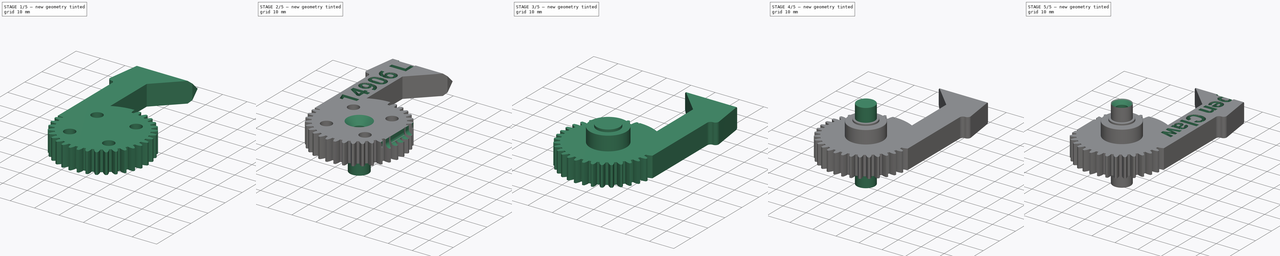
[diagram: build sequence overview — one tinted view per stage of 5, left to right]
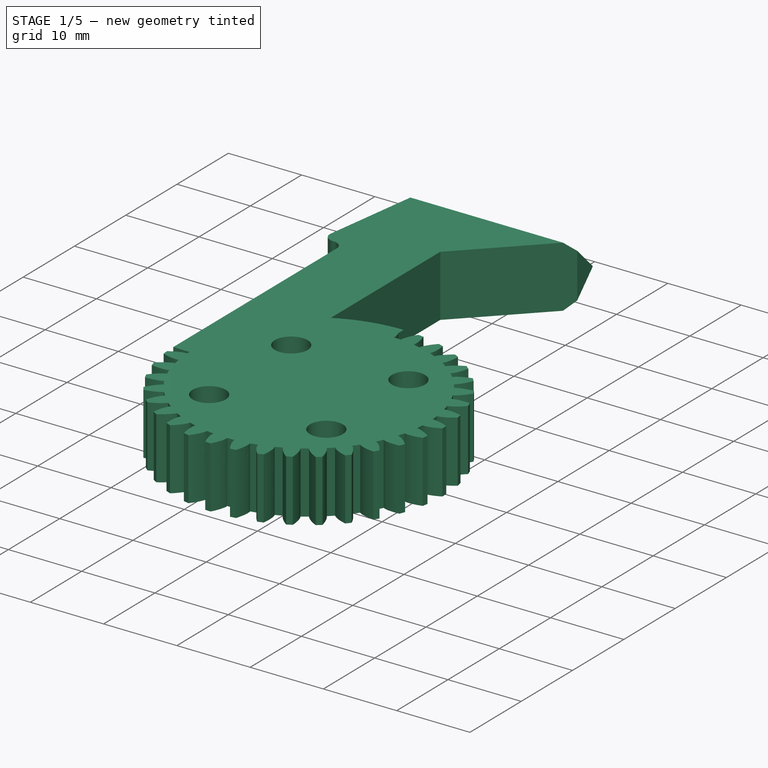
[diagram: stage 1 of 5 — iso view after this stage's code; geometry added in this stage tinted green]
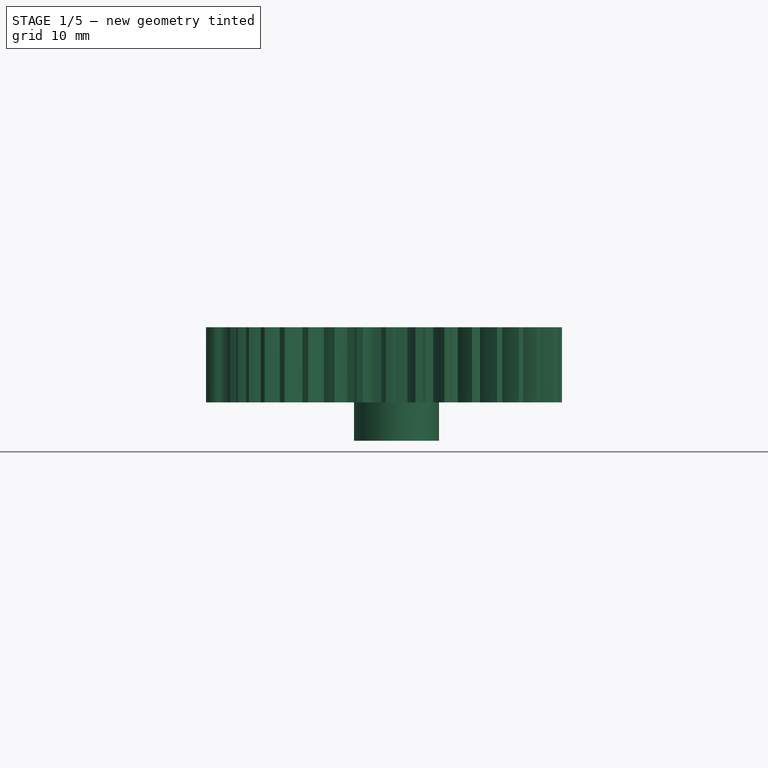
[diagram: stage 1 of 5 — front view after this stage's code; geometry added in this stage tinted green]
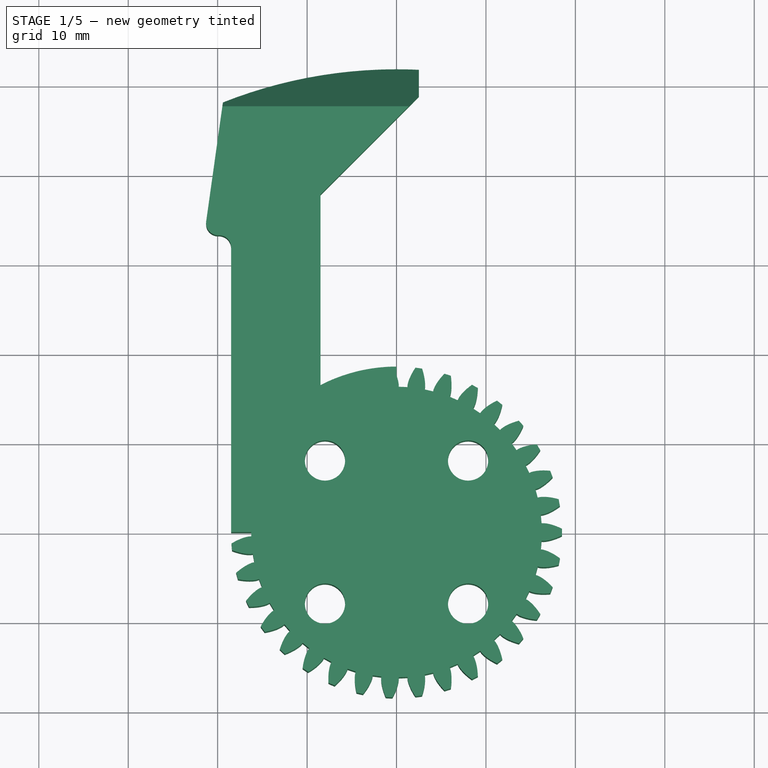
[diagram: stage 1 of 5 — top view after this stage's code; geometry added in this stage tinted green]
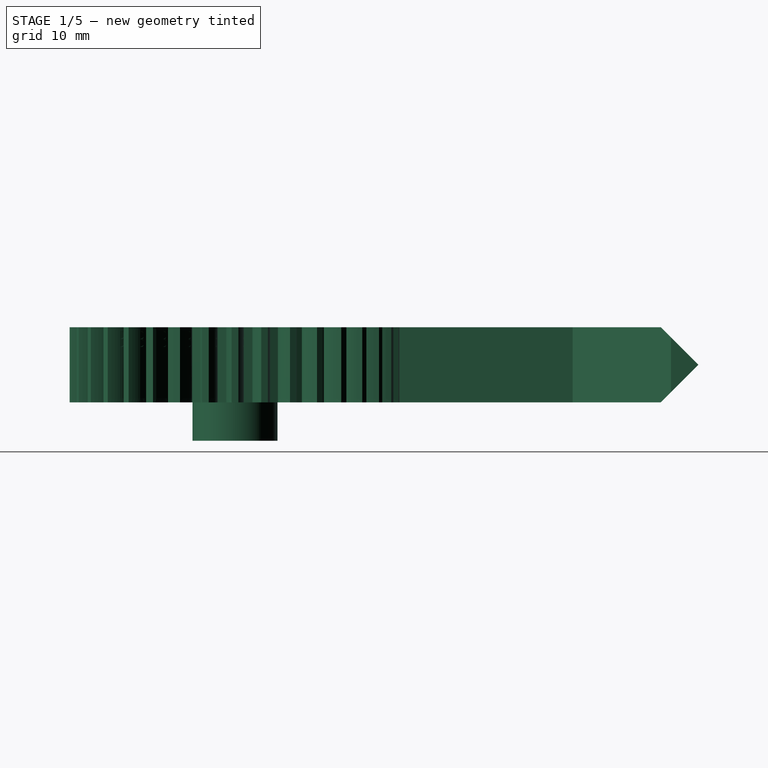
[diagram: stage 1 of 5 — right view after this stage's code; geometry added in this stage tinted green]
FCSTD DOCUMENT  (FreeCAD 1.1R39747 (Git))
Label: claw-pinchers
License: All rights reserved
LicenseURL: https://en.wikipedia.org/wiki/All_rights_reserved
objects: Sketcher::SketchObject×16, PartDesign::Pocket×11, PartDesign::Pad×8, PartDesign::Fillet×4, PartDesign::FeaturePython×2, Part::Part2DObjectPython×2, PartDesign::Hole×2, PartDesign::Body×2, App::Point×2, PartDesign::SubShapeBinder×1
note: 116 computed .brp shape members not serialized (recipe doc carries the construction recipe); baked Part::Feature solids carry a one-line shape summary decoded from their .brp
EXTERNAL_REF file=variables.FCStd obj=Spreadsheet

FEATURE [PartDesign::FeaturePython] InvoluteGear  # WARN: FeaturePython — macro-defined, semantics opaque (R4)
  AttacherType = Attacher::AttachEngine3D
  Suppressed = false
  angular_backlash = 0
  backlash = 0
  beta = 0
  clearance = 0.25
  da = 37
  df = 32.5
  double_helix = false
  dw = 35
  head = 0
  head_fillet = 0
  height = 8.4
  module = 1
  num_teeth = 35
  numpoints = 20
  pressure_angle = 20
  properties_from_tool = false
  reversed_backlash = false
  root_fillet = 0
  shift = 0
  simple = false
  transverse_pitch = 3.14159
  traverse_module = 1
  undercut = false
  version = 1.3.0
  expr: angular_backlash = backlash / dw * 360 ° / pi
  expr: num_teeth = variables#Spreadsheet.claw_pincher_c2c
FEATURE [Sketcher::SketchObject] Sketch
  ArcFitTolerance = 1e-06
  AttachmentSupport = -> [InvoluteGear]
  ExternalTypes = [0]
  FullyConstrained = true
  MakeInternals = false
  MapMode = 5
  Placement = pos=(0,0,8.4) rot=(0,0,1;0rad)
  expr: Constraints[17] = variables#Spreadsheet.claw_pincher_length
  expr: Constraints[1] = variables#Spreadsheet.claw_pincher_c2c + 2
  sketch-geometry (16):
    g0: ArcOfCircle CenterX=0 CenterY=0 CenterZ=0 NormalX=0 NormalY=0 NormalZ=1 AngleXU=0 Radius=18.5 StartAngle=1.5708 EndAngle=2.04818
    g1: LineSegment StartX=0 StartY=0 StartZ=0 EndX=-18.5 EndY=0 EndZ=0
    g2: LineSegment StartX=0 StartY=0 StartZ=0 EndX=0 EndY=18.5 EndZ=0
    g3: LineSegment StartX=-18.5 StartY=0 StartZ=0 EndX=-18.5 EndY=31.8416 EndZ=0
    g4: ArcOfCircle CenterX=0 CenterY=0 CenterZ=0 NormalX=0 NormalY=0 NormalZ=1 AngleXU=0 Radius=51.8191 StartAngle=1.52253 EndAngle=1.95478
    g5: LineSegment StartX=2.5 StartY=51.7588 StartZ=0 EndX=2.5 EndY=48.7588 EndZ=0
    g6: LineSegment StartX=2.5 StartY=48.7588 StartZ=0 EndX=-8.5 EndY=37.7588 EndZ=0
    g7: LineSegment StartX=-8.5 StartY=37.7588 StartZ=0 EndX=-8.5 EndY=16.4317 EndZ=0
    g8: LineSegment [constr] StartX=-13.5 StartY=12.6491 StartZ=0 EndX=-13.5 EndY=47.6491 EndZ=0
    g9: LineSegment [constr] StartX=-18.5 StartY=47.6491 StartZ=0 EndX=-8.5 EndY=47.6491 EndZ=0
    g10: LineSegment StartX=-19.4124 StartY=48.0456 StartZ=0 EndX=-21.2839 EndY=34.7295 EndZ=0
    g11: LineSegment StartX=-19.947 StartY=33.1916 StartZ=0 EndX=-19.85 EndY=33.1916 EndZ=0
    g12: ArcOfCircle CenterX=-19.85 CenterY=31.8416 CenterZ=0 NormalX=0 NormalY=0 NormalZ=1 AngleXU=0 Radius=1.35 StartAngle=-9e-16 EndAngle=1.5708
    g13: GeomPoint [constr] X=-18.5 Y=33.1916 Z=0
    g14: ArcOfCircle CenterX=-19.947 CenterY=34.5416 CenterZ=0 NormalX=0 NormalY=0 NormalZ=1 AngleXU=0 Radius=1.35 StartAngle=3.00197 EndAngle=4.71239
    g15: GeomPoint [constr] X=-21.5 Y=33.1916 Z=0
  constraints (44):
    c: Coincident(g0,g-1)
    c: Diameter(g0) = 37
    c: Coincident(g1,g0)
    c: Horizontal(g1)
    c: Coincident(g2,g0)
    c: Vertical(g2)
    c: Coincident(g0,g2)
    c: Coincident(g3,g1)
    c: Vertical(g3)
    c: Coincident(g4,g0)
    c: Distance(g5) = 3
    c: Coincident(g5,g4)
    c: Vertical(g5)
    c: Coincident(g6,g5)
    c: Coincident(g7,g6)
    c: Vertical(g7)
    c: Vertical(g8)
    c: DistanceY(g8,g8) = 35
    c: Horizontal(g9)
    c: DistanceX(g9,g9) = 10
    c: Symmetric(g9,g9,g8)
    c: Vertical(g6,g9)
    c: DistanceX(g8,g4) = 16
    c: Angle(g9,g6) = 0.785398
    c: Coincident(g0,g7)
    c: PointOnObject(g1,g0)
    c: Horizontal(g11)
    c: PointOnObject(g9,g3)
    c: Coincident(g10,g4)
    c: Distance(g4,g9) = -4.17
    c: DistanceX(g15,g13) = 3
    c: Distance(g10,g15) = 15
    c: PointOnObject(g13,g3)
    c: PointOnObject(g13,g11)
    c: Tangent(g3,g12) = -1.5708
    c: Tangent(g11,g12) = 1.5708
    c: PointOnObject(g15,g10)
    c: PointOnObject(g15,g11)
    c: Tangent(g10,g14) = -1.5708
    c: Tangent(g11,g14) = -1.5708
    c: Angle(g10,g3) = 0.139626
    c: Equal(g12,g14)
    c: Radius(g12) = 1.35
    c: PointOnObject(g8,g0)
FEATURE [PartDesign::Pad] Pad
  BaseFeature = -> InvoluteGear
  Direction = (0,0,1)
  Length = 10
  Length2 = 10
  Profile = -> Sketch
  ReferenceAxis = -> Sketch [N_Axis]
  Refine = true
  Suppressed = false
  Type = 3
  UpToFace = -> InvoluteGear [Face211]
FEATURE [Sketcher::SketchObject] Sketch001
  ArcFitTolerance = 1e-06
  AttachmentSupport = -> [Pad]
  ExternalGeometry = -> [Sketch,Pad]
  ExternalTypes = [0]
  FullyConstrained = true
  MakeInternals = false
  MapMode = 5
  Placement = pos=(-18.5,0,0) rot=(0.57735,-0.57735,-0.57735;2.0944rad)
  sketch-geometry (6):
    g0: LineSegment [constr] StartX=-51.8191 StartY=0 StartZ=0 EndX=-51.8191 EndY=8.4 EndZ=0
    g1: LineSegment StartX=-51.8191 StartY=4.2 StartZ=0 EndX=-47.6191 EndY=8.4 EndZ=0
    g2: LineSegment StartX=-51.8191 StartY=4.2 StartZ=0 EndX=-47.6191 EndY=0 EndZ=0
    g3: LineSegment StartX=-47.6191 StartY=8.4 StartZ=0 EndX=-51.8191 EndY=8.4 EndZ=0
    g4: LineSegment StartX=-51.8191 StartY=8.4 StartZ=0 EndX=-51.8191 EndY=0 EndZ=0
    g5: LineSegment StartX=-51.8191 StartY=0 StartZ=0 EndX=-47.6191 EndY=0 EndZ=0
  constraints (14):
    c: Coincident(g0,g-4)
    c: Coincident(g0,g-3)
    c: Symmetric(g0,g0,g1)
    c: PointOnObject(g1,g-3)
    c: Coincident(g2,g1)
    c: PointOnObject(g2,g-4)
    c: Equal(g2,g1)
    c: Angle(g1,g0) = 0.785398
    c: Coincident(g1,g3)
    c: Coincident(g3,g0)
    c: Coincident(g3,g4)
    c: Coincident(g4,g0)
    c: Coincident(g4,g5)
    c: Coincident(g5,g2)
FEATURE [PartDesign::Pocket] Pocket
  BaseFeature = -> Pad
  Direction = (1,0,0)
  Length = 50
  Length2 = 5
  Midplane = true
  Profile = -> Sketch001
  ReferenceAxis = -> Sketch001 [N_Axis]
  Refine = true
  Suppressed = false
  Type = 0
FEATURE [Sketcher::SketchObject] Sketch002
  ArcFitTolerance = 1e-06
  AttachmentSupport = -> [Pocket]
  ExternalTypes = [0]
  FullyConstrained = true
  MakeInternals = false
  MapMode = 5
  Placement = pos=(0,0,8.4) rot=(0,0,1;0rad)
  sketch-geometry (9):
    g0: LineSegment [constr] StartX=-8 StartY=8 StartZ=0 EndX=-8 EndY=-8 EndZ=0
    g1: LineSegment [constr] StartX=-8 StartY=-8 StartZ=0 EndX=8 EndY=-8 EndZ=0
    g2: LineSegment [constr] StartX=8 StartY=-8 StartZ=0 EndX=8 EndY=8 EndZ=0
    g3: LineSegment [constr] StartX=8 StartY=8 StartZ=0 EndX=-8 EndY=8 EndZ=0
    g4: GeomPoint [constr] X=0 Y=0 Z=0
    g5: Circle CenterX=-8 CenterY=-8 CenterZ=0 NormalX=0 NormalY=0 NormalZ=1 AngleXU=0 Radius=2.25
    g6: Circle CenterX=8 CenterY=-8 CenterZ=0 NormalX=0 NormalY=0 NormalZ=1 AngleXU=0 Radius=2.25
    g7: Circle CenterX=8 CenterY=8 CenterZ=0 NormalX=0 NormalY=0 NormalZ=1 AngleXU=0 Radius=2.25
    g8: Circle CenterX=-8 CenterY=8 CenterZ=0 NormalX=0 NormalY=0 NormalZ=1 AngleXU=0 Radius=2.25
  constraints (20):
    c: Coincident(g0,g1)
    c: Coincident(g1,g2)
    c: Coincident(g2,g3)
    c: Coincident(g3,g0)
    c: Vertical(g0)
    c: Vertical(g2)
    c: Horizontal(g1)
    c: Horizontal(g3)
    c: Symmetric(g2,g0,g4)
    c: Distance(g0,g2) = 16
    c: Coincident(g4,g-1)
    c: Equal(g2,g1)
    c: Diameter(g5) = 4.5
    c: Coincident(g5,g0)
    c: Coincident(g6,g1)
    c: Coincident(g7,g2)
    c: Coincident(g8,g0)
    c: Equal(g8,g7)
    c: Equal(g7,g6)
    c: Equal(g6,g5)
FEATURE [PartDesign::Pocket] Pocket001
  BaseFeature = -> Pocket
  Direction = (0,0,-1)
  Length = 0
  Length2 = 5
  Profile = -> Sketch002
  ReferenceAxis = -> Sketch002 [N_Axis]
  Refine = true
  Suppressed = false
  Type = 3
  UpToFace = -> Pocket [Face4]
FEATURE [Sketcher::SketchObject] Sketch003
  ArcFitTolerance = 1e-06
  AttachmentSupport = -> [Pocket001]
  ExternalTypes = [0]
  FullyConstrained = true
  MakeInternals = false
  MapMode = 5
  Placement = pos=(0,0,0) rot=(1,0,0;3.14159rad)
  sketch-geometry (1):
    g0: Circle CenterX=0 CenterY=0 CenterZ=0 NormalX=0 NormalY=0 NormalZ=1 AngleXU=0 Radius=4.75
  constraints (2):
    c: Diameter(g0) = 9.5
    c: Coincident(g0,g-1)
FEATURE [PartDesign::Pad] Pad001
  BaseFeature = -> Pocket001
  Direction = (0,0,-1)
  Length = 4.3
  Length2 = 10
  Profile = -> Sketch003
  ReferenceAxis = -> Sketch003 [N_Axis]
  Refine = true
  Suppressed = false
  Type = 0
  expr: Length = 4.6 - variables#Spreadsheet.tollerance
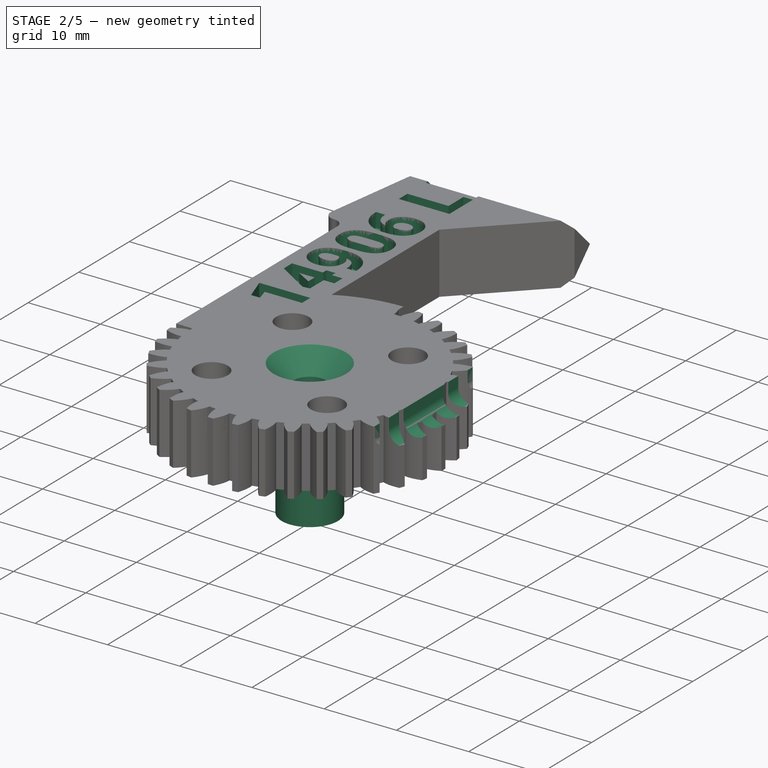
[diagram: stage 2 of 5 — iso view after this stage's code; geometry added in this stage tinted green]
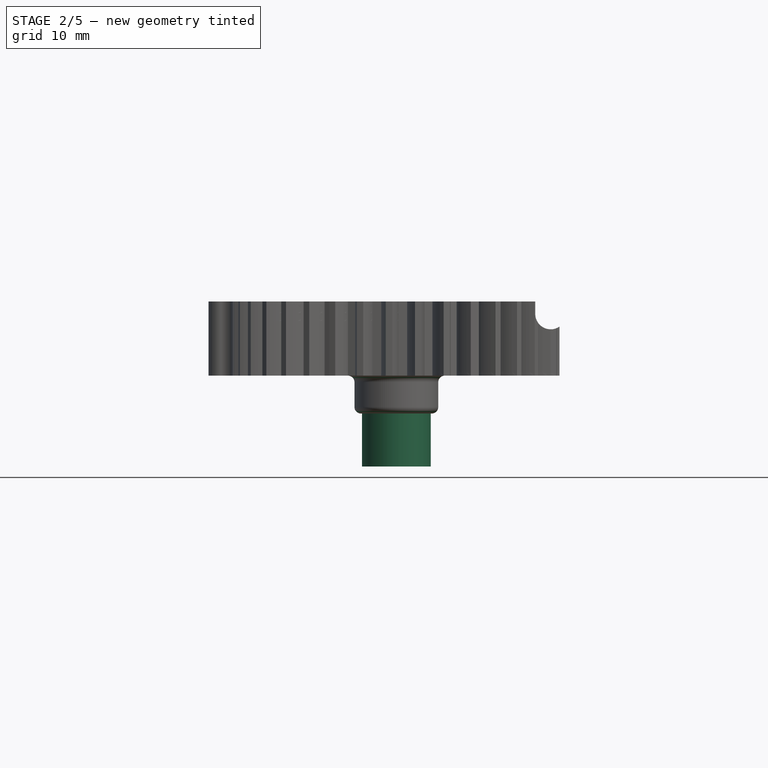
[diagram: stage 2 of 5 — front view after this stage's code; geometry added in this stage tinted green]
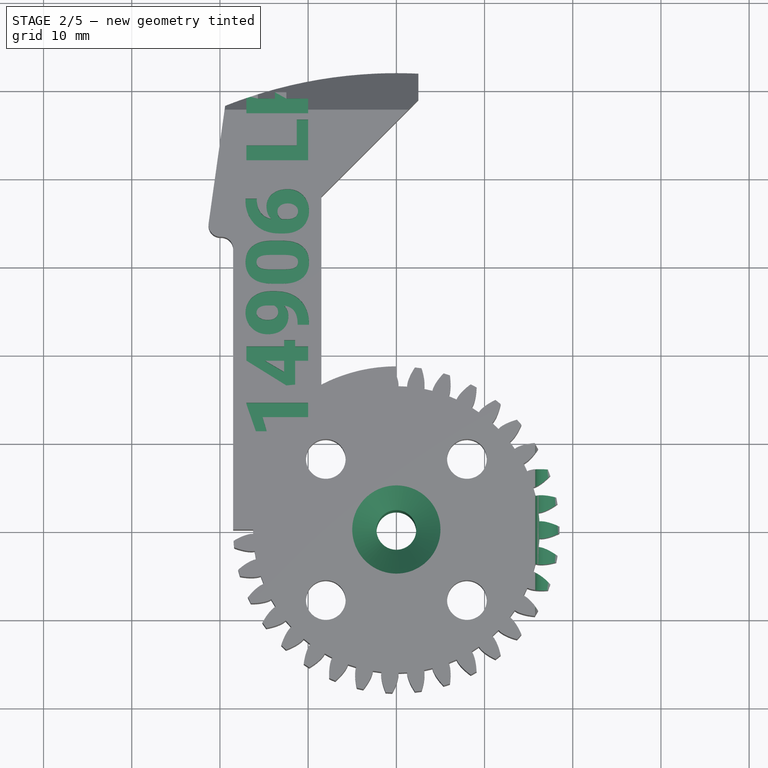
[diagram: stage 2 of 5 — top view after this stage's code; geometry added in this stage tinted green]
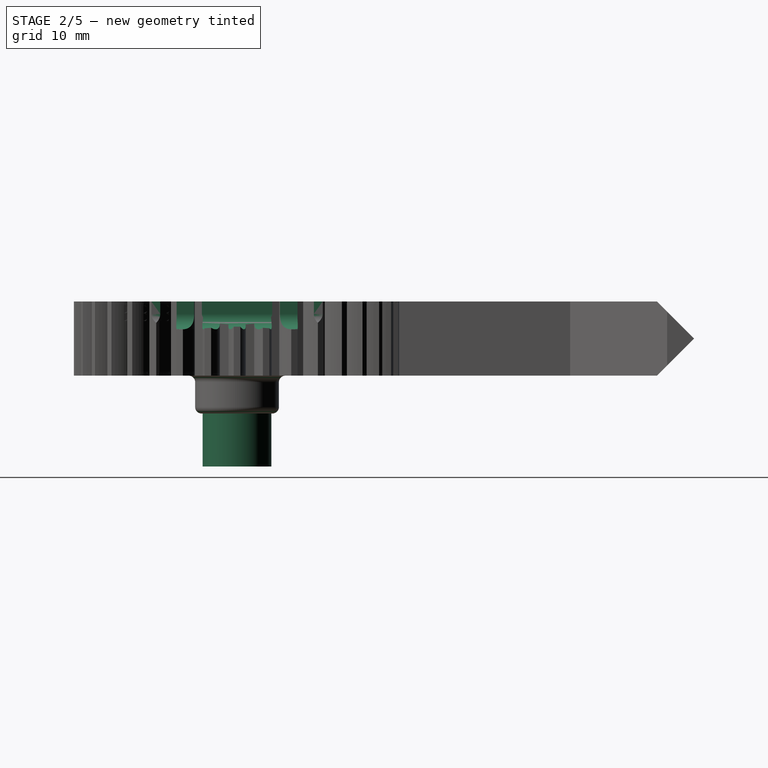
[diagram: stage 2 of 5 — right view after this stage's code; geometry added in this stage tinted green]
FEATURE [PartDesign::Fillet] Fillet
  Base = -> Pad001 [Edge186,Edge542]
  BaseFeature = -> Pad001
  Radius = 0.75
  Refine = true
  SupportTransform = false
  Suppressed = false
  UseAllEdges = false
FEATURE [Sketcher::SketchObject] Sketch004
  ArcFitTolerance = 1e-06
  AttachmentSupport = -> [Fillet]
  ExternalTypes = [0]
  FullyConstrained = true
  MakeInternals = false
  MapMode = 5
  Placement = pos=(0,0,-4.3) rot=(1,0,0;3.14159rad)
  expr: Constraints[0] = variables#Spreadsheet.shaft_diam
  sketch-geometry (1):
    g0: Circle CenterX=0 CenterY=0 CenterZ=0 NormalX=0 NormalY=0 NormalZ=1 AngleXU=0 Radius=3.9
  constraints (2):
    c: Diameter(g0) = 7.8
    c: Coincident(g0,g-1)
FEATURE [PartDesign::Pad] Pad002
  BaseFeature = -> Fillet
  Direction = (0,0,-1)
  Length = 6
  Length2 = 10
  Profile = -> Sketch004
  ReferenceAxis = -> Sketch004 [N_Axis]
  Refine = true
  Suppressed = false
  Type = 0
FEATURE [Sketcher::SketchObject] Sketch005
  ArcFitTolerance = 1e-06
  AttachmentSupport = -> [Pad002]
  ExternalGeometry = -> [Pad002]
  ExternalTypes = [0]
  FullyConstrained = true
  MakeInternals = false
  MapMode = 5
  Placement = pos=(0,0,0) rot=(1,0,0;3.14159rad)
  sketch-geometry (4):
    g0: Circle CenterX=-8 CenterY=-8 CenterZ=0 NormalX=0 NormalY=0 NormalZ=1 AngleXU=0 Radius=4.5
    g1: Circle CenterX=8 CenterY=-8 CenterZ=0 NormalX=0 NormalY=0 NormalZ=1 AngleXU=0 Radius=4.5
    g2: Circle CenterX=8 CenterY=8 CenterZ=0 NormalX=0 NormalY=0 NormalZ=1 AngleXU=0 Radius=4.5
    g3: Circle CenterX=-8 CenterY=8 CenterZ=0 NormalX=0 NormalY=0 NormalZ=1 AngleXU=0 Radius=4.5
  constraints (8):
    c: Diameter(g0) = 9
    c: Coincident(g0,g-6)
    c: Coincident(g1,g-5)
    c: Coincident(g2,g-4)
    c: Coincident(g3,g-3)
    c: Equal(g3,g2)
    c: Equal(g2,g1)
    c: Equal(g1,g0)
FEATURE [PartDesign::Pocket] Pocket002
  BaseFeature = -> Pad002
  Direction = (0,0,1)
  Length = 1.5
  Length2 = 5
  Profile = -> Sketch005
  ReferenceAxis = -> Sketch005 [N_Axis]
  Refine = true
  Suppressed = false
  Type = 0
FEATURE [Part::Part2DObjectPython] ShapeString  # Draft 2D object (typed FeaturePython)
  AttachmentOffset = pos=(-13.5,32,0) rot=(0,0,1;1.5708rad)
  AttachmentSupport = -> [Pocket002]
  FontFile = <userpath>/Downloads/Roboto/Roboto-Black.ttf
  Fuse = false
  Justification = 4
  JustificationReference = 0
  KeepLeftMargin = false
  MakeFace = true
  MapMode = 5
  ObliqueAngle = 0
  Placement = pos=(-13.5,32,8.4) rot=(0,0,1;1.5708rad)
  ScaleToSize = true
  Size = 7
  String = 14906 LR
  Tracking = 0
FEATURE [PartDesign::Pocket] Pocket006
  BaseFeature = -> Pocket002
  Direction = (0,0,-1)
  Length = 2
  Length2 = 5
  Profile = -> ShapeString
  ReferenceAxis = -> ShapeString [N_Axis]
  Refine = true
  Suppressed = false
  Type = 0
FEATURE [Sketcher::SketchObject] Sketch013
  ArcFitTolerance = 1e-06
  AttachmentSupport = -> [Pocket006]
  ExternalTypes = [0]
  FullyConstrained = true
  MakeInternals = false
  MapMode = 5
  Placement = pos=(0,0,8.4) rot=(0,0,1;0rad)
  sketch-geometry (1):
    g0: Circle CenterX=0 CenterY=0 CenterZ=0 NormalX=0 NormalY=0 NormalZ=1 AngleXU=0 Radius=2.25
  constraints (2):
    c: Coincident(g0,g-1)
    c: Diameter(g0) = 4.5
FEATURE [PartDesign::Hole] Hole001
  BaseFeature = -> Pocket006
  CustomThreadClearance = 0
  Depth = 185.015
  DepthType = 1
  Diameter = 4.5
  DrillForDepth = false
  DrillPoint = 1
  DrillPointAngle = 118
  HoleCutCountersinkAngle = 90
  HoleCutCustomValues = false
  HoleCutDepth = 0.5
  HoleCutDiameter = 10
  HoleCutType = 2
  ModelThread = false
  Profile = -> Sketch013
  Refine = true
  Suppressed = false
  Tapered = false
  TaperedAngle = 90
  ThreadClass = 0
  ThreadDepth = 185.015
  ThreadDepthType = 0
  ThreadDirection = 0
  ThreadFit = 0
  ThreadSize = 0
  ThreadType = 0
  Threaded = false
  UseCustomThreadClearance = false
FEATURE [Sketcher::SketchObject] Sketch014
  ArcFitTolerance = 1e-06
  AttachmentSupport = -> [XZ_Plane]
  ExternalGeometry = -> [Hole001]
  ExternalTypes = [0]
  FullyConstrained = true
  MakeInternals = false
  MapMode = 5
  Placement = pos=(0,0,0) rot=(1,0,0;1.5708rad)
  sketch-geometry (5):
    g0: ArcOfCircle CenterX=17.5 CenterY=7 CenterZ=0 NormalX=0 NormalY=0 NormalZ=1 AngleXU=0 Radius=1.75 StartAngle=3.14159 EndAngle=6.28319
    g1: LineSegment [constr] StartX=5 StartY=8.4 StartZ=0 EndX=25 EndY=8.4 EndZ=0
    g2: LineSegment StartX=19.25 StartY=7 StartZ=0 EndX=19.25 EndY=8.4 EndZ=0
    g3: LineSegment StartX=15.75 StartY=7 StartZ=0 EndX=15.75 EndY=8.4 EndZ=0
    g4: LineSegment StartX=15.75 StartY=8.4 StartZ=0 EndX=19.25 EndY=8.4 EndZ=0
  constraints (15):
    c: DistanceX(g0) = 17.5  'screwdriver_hole_x'
    c: DistanceY(g0) = 7  'screwdriver_hole_y'
    c: Diameter(g0) = 3.5  'screwdriver_hole_diam'
    c: Distance(g1) = 20
    c: Coincident(g1,g-3)
    c: Horizontal(g1)
    c: PointOnObject(g2,g1)
    c: Vertical(g2)
    c: PointOnObject(g3,g1)
    c: Vertical(g3)
    c: Horizontal(g3,g0)
    c: Tangent(g0,g2) = -1.5708
    c: Coincident(g0,g3)
    c: Coincident(g4,g3)
    c: Coincident(g4,g2)
FEATURE [PartDesign::Pocket] Pocket009
  BaseFeature = -> Hole001
  Direction = (0,1,-2e-16)
  Length = 25
  Length2 = 5
  Midplane = true
  Profile = -> Sketch014
  ReferenceAxis = -> Sketch014 [N_Axis]
  Refine = true
  Suppressed = false
  Type = 0
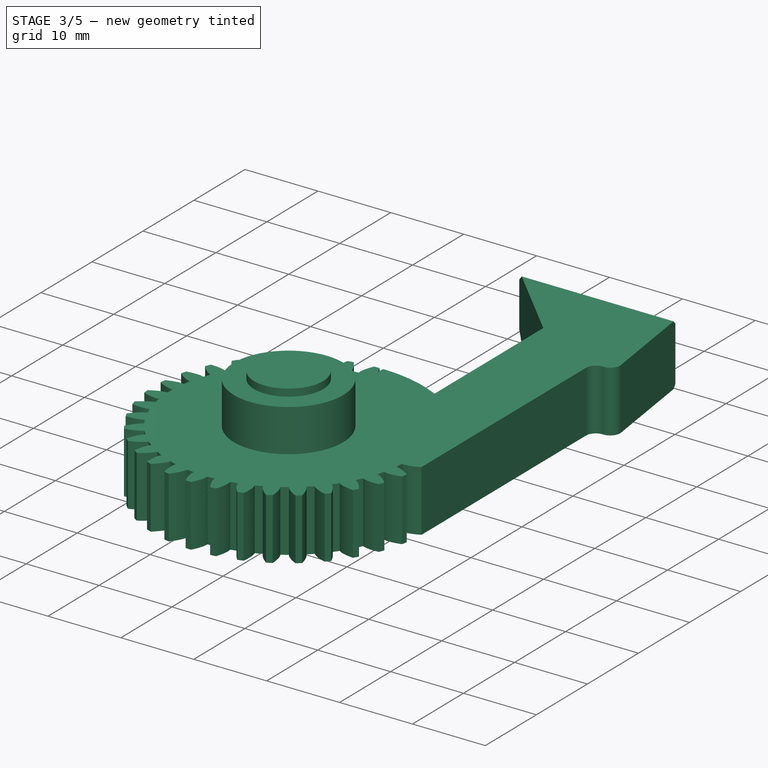
[diagram: stage 3 of 5 — iso view after this stage's code; geometry added in this stage tinted green]
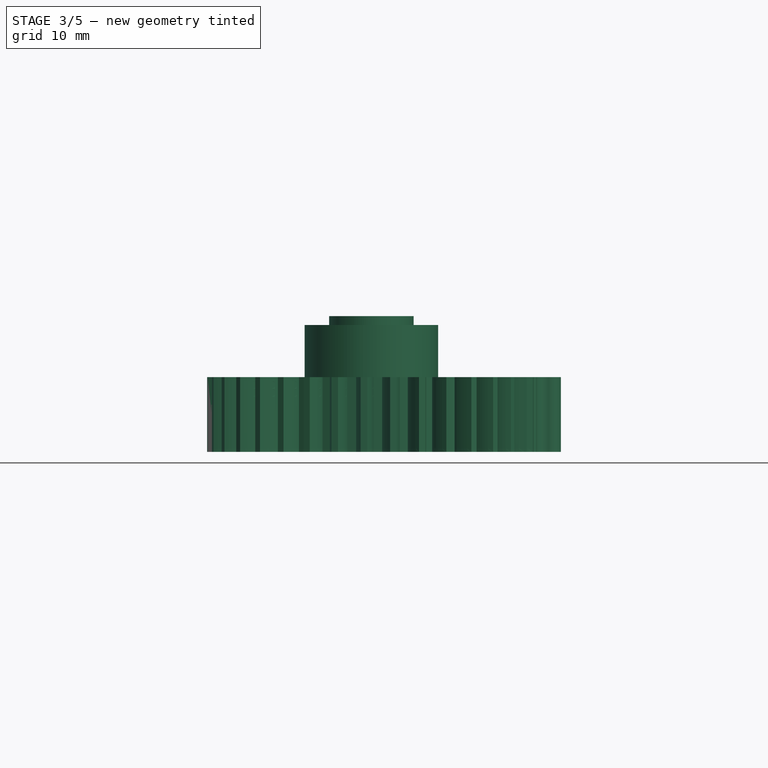
[diagram: stage 3 of 5 — front view after this stage's code; geometry added in this stage tinted green]
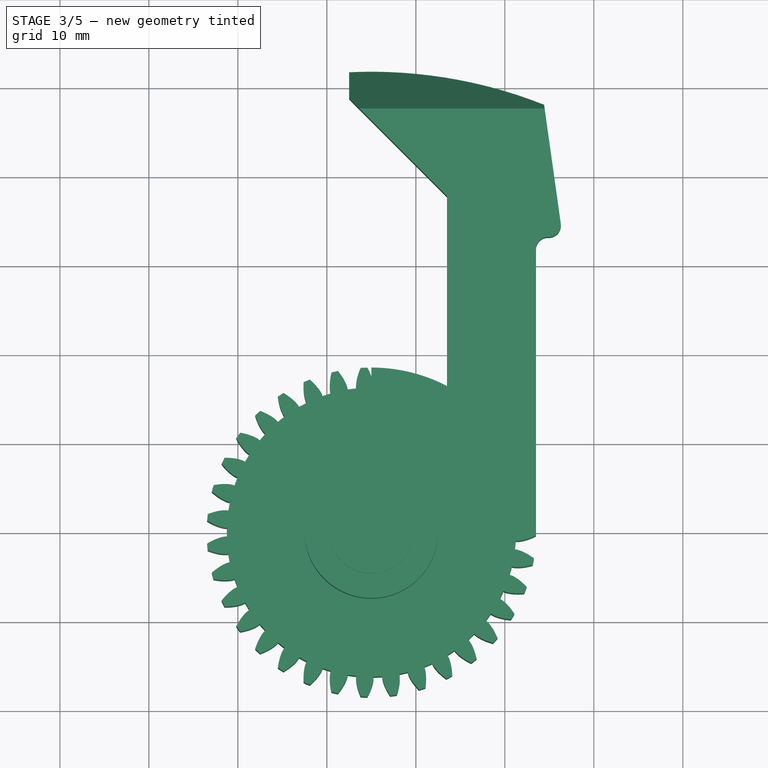
[diagram: stage 3 of 5 — top view after this stage's code; geometry added in this stage tinted green]
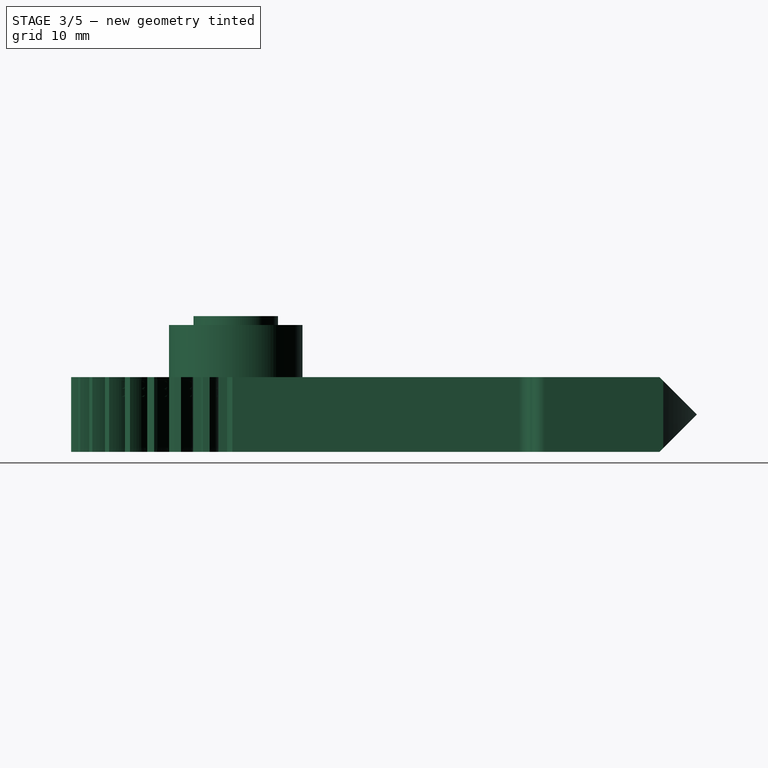
[diagram: stage 3 of 5 — right view after this stage's code; geometry added in this stage tinted green]
FEATURE [PartDesign::FeaturePython] InvoluteGear001  # WARN: FeaturePython — macro-defined, semantics opaque (R4)
  AttacherType = Attacher::AttachEngine3D
  Placement = pos=(35,0,0) rot=(0,0,1;0rad)
  Suppressed = false
  angular_backlash = 0
  backlash = 0
  beta = 0
  clearance = 0.25
  da = 37
  df = 32.5
  double_helix = false
  dw = 35
  head = 0
  head_fillet = 0
  height = 8.4
  module = 1
  num_teeth = 35
  numpoints = 20
  pressure_angle = 20
  properties_from_tool = false
  reversed_backlash = false
  root_fillet = 0
  shift = 0
  simple = false
  transverse_pitch = 3.14159
  traverse_module = 1
  undercut = false
  version = 1.3.0
  expr: .Placement.Base.x = variables#Spreadsheet.claw_pincher_c2c
  expr: angular_backlash = backlash / dw * 360 ° / pi
  expr: height = InvoluteGear.height
  expr: num_teeth = variables#Spreadsheet.claw_pincher_c2c
FEATURE [PartDesign::SubShapeBinder] Binder
  BindCopyOnChange = 0
  BindMode = 0
  ClaimChildren = false
  Context = -> Body001 [Binder.]
  Fuse = false
  MakeFace = true
  OffsetFill = false
  OffsetIntersection = false
  OffsetJoinType = 0
  OffsetOpenResult = false
  PartialLoad = false
  Refine = true
  Relative = true
  Support = -> [Body]
  _Version = 2
FEATURE [Sketcher::SketchObject] Sketch006
  ArcFitTolerance = 1e-06
  AttachmentSupport = -> [InvoluteGear001]
  ExternalGeometry = -> [Binder]
  ExternalTypes = [0]
  FullyConstrained = true
  MakeInternals = false
  MapMode = 5
  Placement = pos=(35,0,8.4) rot=(0,0,1;0rad)
  expr: Constraints[2] = (variables#Spreadsheet.claw_pincher_c2c + 2) / 2
  sketch-geometry (17):
    g0: LineSegment StartX=0 StartY=0 StartZ=0 EndX=18.5 EndY=0 EndZ=0
    g1: LineSegment StartX=0 StartY=18.5 StartZ=0 EndX=0 EndY=0 EndZ=0
    g2: LineSegment StartX=18.5 StartY=0 StartZ=0 EndX=18.5 EndY=31.8416 EndZ=0
    g3: ArcOfCircle CenterX=19.85 CenterY=31.8416 CenterZ=0 NormalX=0 NormalY=0 NormalZ=1 AngleXU=0 Radius=1.35 StartAngle=1.5708 EndAngle=3.14159
    g4: LineSegment StartX=19.85 StartY=33.1916 StartZ=0 EndX=19.947 EndY=33.1916 EndZ=0
    g5: ArcOfCircle CenterX=19.947 CenterY=34.5416 CenterZ=0 NormalX=0 NormalY=0 NormalZ=1 AngleXU=0 Radius=1.35 StartAngle=4.71239 EndAngle=6.42281
    g6: LineSegment StartX=21.2839 StartY=34.7295 StartZ=0 EndX=19.4124 EndY=48.0456 EndZ=0
    g7: LineSegment [constr] StartX=-56.2839 StartY=34.7295 StartZ=0 EndX=-54.4124 EndY=48.0456 EndZ=0
    g8: LineSegment StartX=8.5 StartY=16.4317 StartZ=0 EndX=8.5 EndY=37.7588 EndZ=0
    g9: LineSegment StartX=8.5 StartY=37.7588 StartZ=0 EndX=-2.5 EndY=48.7588 EndZ=0
    g10: LineSegment [constr] StartX=8.5 StartY=27.0952 StartZ=0 EndX=18.5 EndY=27.0952 EndZ=0
    g11: LineSegment [constr] StartX=-53.5 StartY=15.9208 StartZ=0 EndX=-43.5 EndY=15.9208 EndZ=0
    g12: LineSegment [constr] StartX=-32.5 StartY=48.7588 StartZ=0 EndX=-43.5 EndY=37.7588 EndZ=0
    g13: LineSegment StartX=-2.5 StartY=48.7588 StartZ=0 EndX=-2.5 EndY=51.7588 EndZ=0
    g14: ArcOfCircle CenterX=0 CenterY=0 CenterZ=0 NormalX=0 NormalY=0 NormalZ=1 AngleXU=0 Radius=51.8191 StartAngle=1.18681 EndAngle=1.61906
    g15: ArcOfCircle CenterX=0 CenterY=0 CenterZ=0 NormalX=0 NormalY=0 NormalZ=1 AngleXU=0 Radius=18.5 StartAngle=1.09341 EndAngle=1.5708
    g16: LineSegment [constr] StartX=-54.4124 StartY=48.0456 StartZ=0 EndX=-32.5 EndY=51.7588 EndZ=0
  constraints (46):
    c: Coincident(g0,g-1)
    c: PointOnObject(g0,g-1)
    c: DistanceX(g0,g0) = 18.5
    c: PointOnObject(g1,g-2)
    c: Coincident(g2,g0)
    c: Vertical(g2)
    c: Equal(g5,g3)
    c: Equal(g3,g-5)
    c: Equal(g4,g-7)
    c: Horizontal(g4)
    c: Tangent(g3,g2) = 1.5708
    c: Tangent(g4,g3) = 1.5708
    c: Tangent(g5,g4) = -1.5708
    c: Coincident(g6,g5)
    c: Horizontal(g-10,g6)
    c: Coincident(g7,g-8)
    c: Coincident(g7,g-10)
    c: Vertical(g8)
    c: Equal(g8,g-4)
    c: Coincident(g9,g8)
    c: Symmetric(g8,g8,g10)
    c: PointOnObject(g10,g2)
    c: Horizontal(g10)
    c: Symmetric(g-3,g-3,g11)
    c: PointOnObject(g11,g-4)
    c: Horizontal(g11)
    c: Equal(g11,g10)
    c: Coincident(g12,g-14)
    c: Coincident(g12,g-15)
    c: Coincident(g13,g9)
    c: Vertical(g13)
    c: Horizontal(g13,g-13)
    c: Coincident(g14,g13)
    c: Coincident(g14,g6)
    c: Coincident(g14,g0)
    c: Horizontal(g5,g7)
    c: Horizontal(g2,g-5)
    c: Coincident(g15,g8)
    c: Coincident(g15,g1)
    c: Coincident(g1,g15)
    c: Coincident(g0,g1)
    c: Horizontal(g8,g-4)
    c: Coincident(g16,g7)
    c: Coincident(g16,g-13)
    c: Horizontal(g9,g12)
    c: Equal(g9,g12)
FEATURE [PartDesign::Pad] Pad003
  BaseFeature = -> InvoluteGear001
  Direction = (0,0,1)
  Length = 10
  Length2 = 10
  Placement = pos=(35,0,0) rot=(0,0,1;0rad)
  Profile = -> Sketch006
  ReferenceAxis = -> Sketch006 [N_Axis]
  Refine = true
  Suppressed = false
  Type = 3
  UpToFace = -> InvoluteGear001 [Face211]
FEATURE [Sketcher::SketchObject] Sketch007
  ArcFitTolerance = 1e-06
  AttachmentSupport = -> [Pad003]
  ExternalGeometry = -> [Pad003]
  ExternalTypes = [0]
  FullyConstrained = true
  MakeInternals = false
  MapMode = 5
  Placement = pos=(53.5,0,0) rot=(0.57735,0.57735,0.57735;2.0944rad)
  sketch-geometry (7):
    g0: GeomPoint X=51.8191 Y=4.2 Z=0
    g1: LineSegment StartX=51.8191 StartY=4.2 StartZ=0 EndX=47.6191 EndY=8.4 EndZ=0
    g2: LineSegment StartX=51.8191 StartY=4.2 StartZ=0 EndX=47.6191 EndY=0 EndZ=0
    g3: LineSegment StartX=47.6191 StartY=0 StartZ=0 EndX=51.8191 EndY=0 EndZ=0
    g4: LineSegment StartX=51.8191 StartY=8.4 StartZ=0 EndX=47.6191 EndY=8.4 EndZ=0
    g5: LineSegment StartX=51.8191 StartY=0 StartZ=0 EndX=51.8191 EndY=4.2 EndZ=0
    g6: LineSegment StartX=51.8191 StartY=4.2 StartZ=0 EndX=51.8191 EndY=8.4 EndZ=0
  constraints (17):
    c: Coincident(g1,g0)
    c: Horizontal(g1,g-3)
    c: Angle(g1,g-3) = 0.785398
    c: PointOnObject(g2,g-1)
    c: Coincident(g2,g0)
    c: Vertical(g2,g1)
    c: Coincident(g3,g2)
    c: Coincident(g3,g-4)
    c: Coincident(g4,g1)
    c: Horizontal(g4)
    c: Coincident(g5,g3)
    c: Coincident(g5,g0)
    c: Vertical(g5)
    c: Coincident(g6,g0)
    c: Coincident(g6,g4)
    c: Vertical(g6)
    c: Equal(g2,g1)
FEATURE [PartDesign::Pocket] Pocket003
  BaseFeature = -> Pad003
  Direction = (-1,0,0)
  Length = 50
  Length2 = 5
  Midplane = true
  Placement = pos=(35,0,0) rot=(0,0,1;0rad)
  Profile = -> Sketch007
  ReferenceAxis = -> Sketch007 [N_Axis]
  Refine = true
  Suppressed = false
  Type = 0
FEATURE [Sketcher::SketchObject] Sketch008
  ArcFitTolerance = 1e-06
  AttachmentSupport = -> [Pocket003]
  ExternalTypes = [0]
  FullyConstrained = true
  MakeInternals = false
  MapMode = 5
  Placement = pos=(35,0,8.4) rot=(0,0,1;0rad)
  sketch-geometry (1):
    g0: Circle CenterX=0 CenterY=0 CenterZ=0 NormalX=0 NormalY=0 NormalZ=1 AngleXU=0 Radius=7.5
  constraints (2):
    c: Diameter(g0) = 15
    c: Coincident(g0,g-1)
FEATURE [PartDesign::Pad] Pad004
  BaseFeature = -> Pocket003
  Direction = (0,0,1)
  Length = 6.85
  Length2 = 10
  Placement = pos=(35,0,0) rot=(0,0,1;0rad)
  Profile = -> Sketch008
  ReferenceAxis = -> Sketch008 [N_Axis]
  Refine = true
  Suppressed = false
  Type = 0
  expr: Length = 7 - variables#Spreadsheet.tollerance / 2
FEATURE [Sketcher::SketchObject] Sketch009
  ArcFitTolerance = 1e-06
  AttachmentSupport = -> [Pad004]
  ExternalGeometry = -> [Pad004]
  ExternalTypes = [0]
  FullyConstrained = true
  MakeInternals = false
  MapMode = 5
  Placement = pos=(35,0,15.25) rot=(0,0,1;0rad)
  expr: Constraints[4] = variables#Spreadsheet.shaft_diam
  sketch-geometry (3):
    g0: Circle CenterX=0 CenterY=0 CenterZ=0 NormalX=0 NormalY=0 NormalZ=1 AngleXU=0 Radius=4.75
    g1: Circle CenterX=0 CenterY=0 CenterZ=0 NormalX=0 NormalY=0 NormalZ=1 AngleXU=0 Radius=7.5
    g2: Circle CenterX=0 CenterY=0 CenterZ=0 NormalX=0 NormalY=0 NormalZ=1 AngleXU=0 Radius=3.9
  constraints (6):
    c: Diameter(g0) = 9.5
    c: Coincident(g0,g-1)
    c: Coincident(g1,g0)
    c: Equal(g1,g-3)
    c: Diameter(g2) = 7.8
    c: Coincident(g2,g0)
FEATURE [PartDesign::Pocket] Pocket004
  BaseFeature = -> Pad004
  Direction = (0,0,-1)
  Length = 1
  Length2 = 5
  Placement = pos=(35,0,0) rot=(0,0,1;0rad)
  Profile = -> Sketch009 [Edge1,Edge2]
  ReferenceAxis = -> Sketch009 [N_Axis]
  Refine = true
  Suppressed = false
  Type = 0
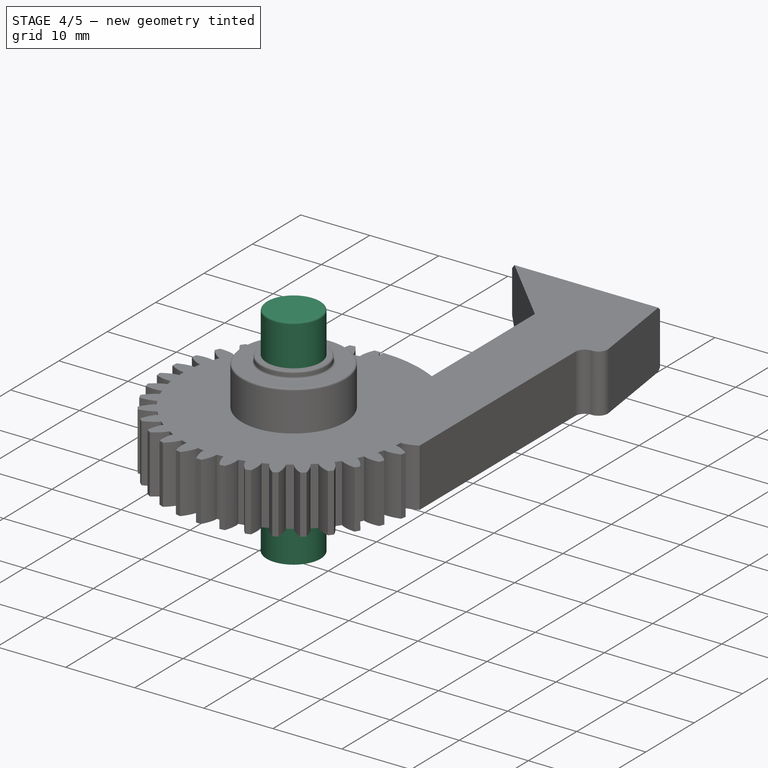
[diagram: stage 4 of 5 — iso view after this stage's code; geometry added in this stage tinted green]
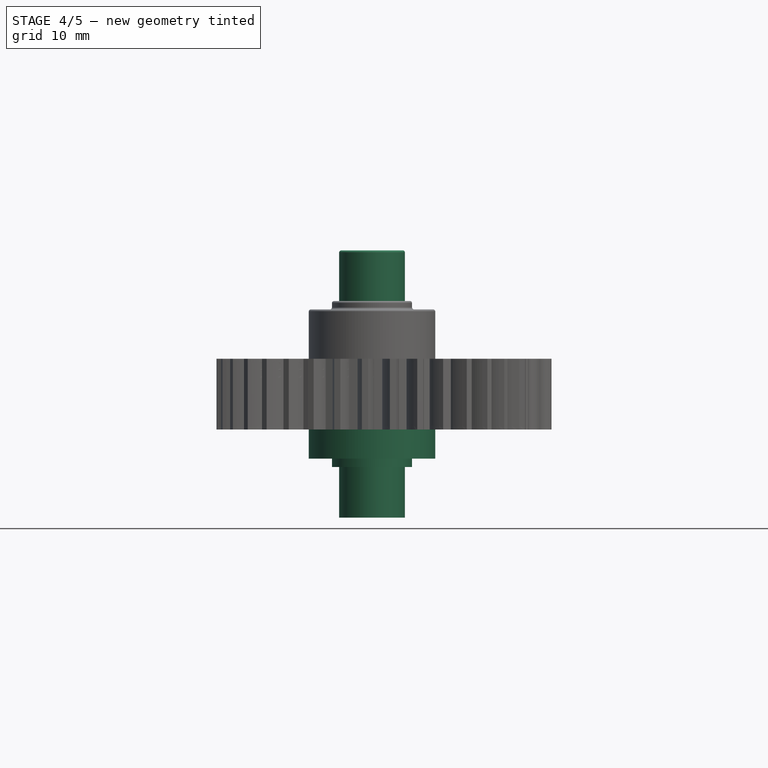
[diagram: stage 4 of 5 — front view after this stage's code; geometry added in this stage tinted green]
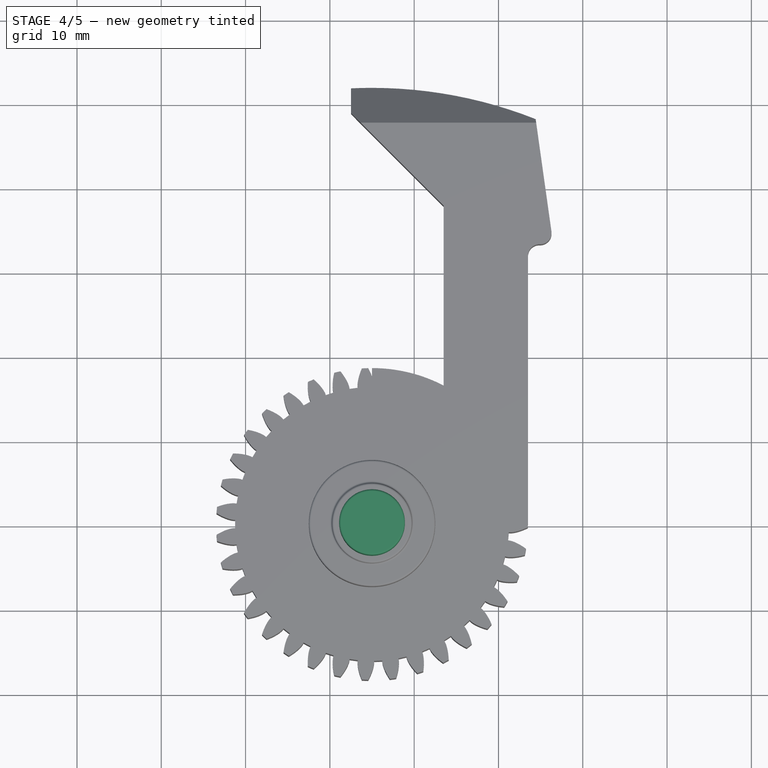
[diagram: stage 4 of 5 — top view after this stage's code; geometry added in this stage tinted green]
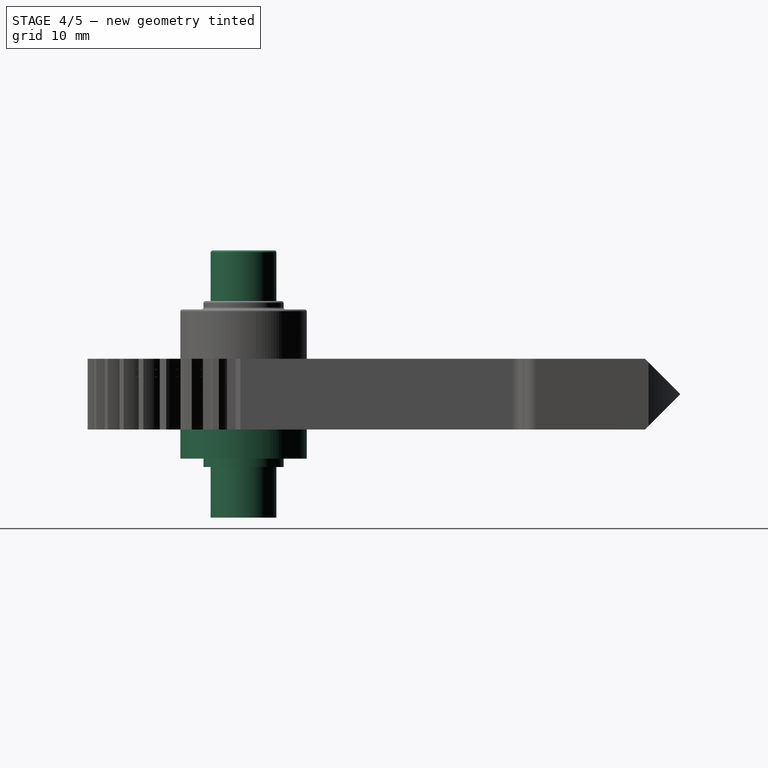
[diagram: stage 4 of 5 — right view after this stage's code; geometry added in this stage tinted green]
FEATURE [PartDesign::Pad] Pad005
  BaseFeature = -> Pocket004
  Direction = (0,0,1)
  Length = 6
  Length2 = 10
  Placement = pos=(35,0,0) rot=(0,0,1;0rad)
  Profile = -> Sketch009 [Edge3]
  ReferenceAxis = -> Sketch009 [N_Axis]
  Refine = true
  Suppressed = false
  Type = 0
FEATURE [PartDesign::Fillet] Fillet001
  Base = -> Pad005 [Edge534,Edge532,Edge530,Edge537]
  BaseFeature = -> Pad005
  Placement = pos=(35,0,0) rot=(0,0,1;0rad)
  Radius = 0.25
  Refine = true
  SupportTransform = false
  Suppressed = false
  UseAllEdges = false
FEATURE [PartDesign::Fillet] Fillet002
  Base = -> Fillet001 [Edge3]
  BaseFeature = -> Fillet001
  Placement = pos=(35,0,0) rot=(0,0,1;0rad)
  Radius = 8
  Refine = true
  SupportTransform = false
  Suppressed = true
  UseAllEdges = false
FEATURE [Sketcher::SketchObject] Sketch010
  ArcFitTolerance = 1e-06
  AttachmentSupport = -> [Fillet002]
  ExternalTypes = [0]
  FullyConstrained = true
  MakeInternals = false
  MapMode = 5
  Placement = pos=(35,0,0) rot=(1,0,0;3.14159rad)
  sketch-geometry (1):
    g0: Circle CenterX=0 CenterY=0 CenterZ=0 NormalX=0 NormalY=0 NormalZ=1 AngleXU=0 Radius=7.5
  constraints (2):
    c: Diameter(g0) = 15
    c: Coincident(g0,g-1)
FEATURE [PartDesign::Pad] Pad006
  BaseFeature = -> Fillet002
  Direction = (0,0,-1)
  Length = 4.45
  Length2 = 10
  Placement = pos=(35,0,0) rot=(0,0,1;0rad)
  Profile = -> Sketch010
  ReferenceAxis = -> Sketch010 [N_Axis]
  Refine = true
  Suppressed = false
  Type = 0
  expr: Length = 4.6 - variables#Spreadsheet.tollerance / 2
FEATURE [Sketcher::SketchObject] Sketch011
  ArcFitTolerance = 1e-06
  AttachmentSupport = -> [Pad006]
  ExternalGeometry = -> [Pad006]
  ExternalTypes = [0]
  FullyConstrained = true
  MakeInternals = false
  MapMode = 5
  Placement = pos=(35,0,-4.45) rot=(1,0,0;3.14159rad)
  expr: Constraints[0] = variables#Spreadsheet.shaft_diam
  sketch-geometry (3):
    g0: Circle CenterX=0 CenterY=0 CenterZ=0 NormalX=0 NormalY=0 NormalZ=1 AngleXU=0 Radius=3.9
    g1: Circle CenterX=0 CenterY=0 CenterZ=0 NormalX=0 NormalY=0 NormalZ=1 AngleXU=0 Radius=4.75
    g2: Circle CenterX=0 CenterY=0 CenterZ=0 NormalX=0 NormalY=0 NormalZ=1 AngleXU=0 Radius=7.5
  constraints (6):
    c: Diameter(g0) = 7.8
    c: Coincident(g0,g-1)
    c: Diameter(g1) = 9.5
    c: Coincident(g1,g0)
    c: Coincident(g2,g0)
    c: Equal(g2,g-3)
FEATURE [PartDesign::Pocket] Pocket005
  BaseFeature = -> Pad006
  Direction = (0,0,1)
  Length = 1
  Length2 = 5
  Placement = pos=(35,0,0) rot=(0,0,1;0rad)
  Profile = -> Sketch011 [Edge3,Edge2]
  ReferenceAxis = -> Sketch011 [N_Axis]
  Refine = true
  Suppressed = false
  Type = 0
FEATURE [PartDesign::Pad] Pad007
  BaseFeature = -> Pocket005
  Direction = (0,0,-1)
  Length = 6
  Length2 = 10
  Placement = pos=(35,0,0) rot=(0,0,1;0rad)
  Profile = -> Sketch011 [Edge1]
  ReferenceAxis = -> Sketch011 [N_Axis]
  Refine = true
  Suppressed = false
  Type = 0
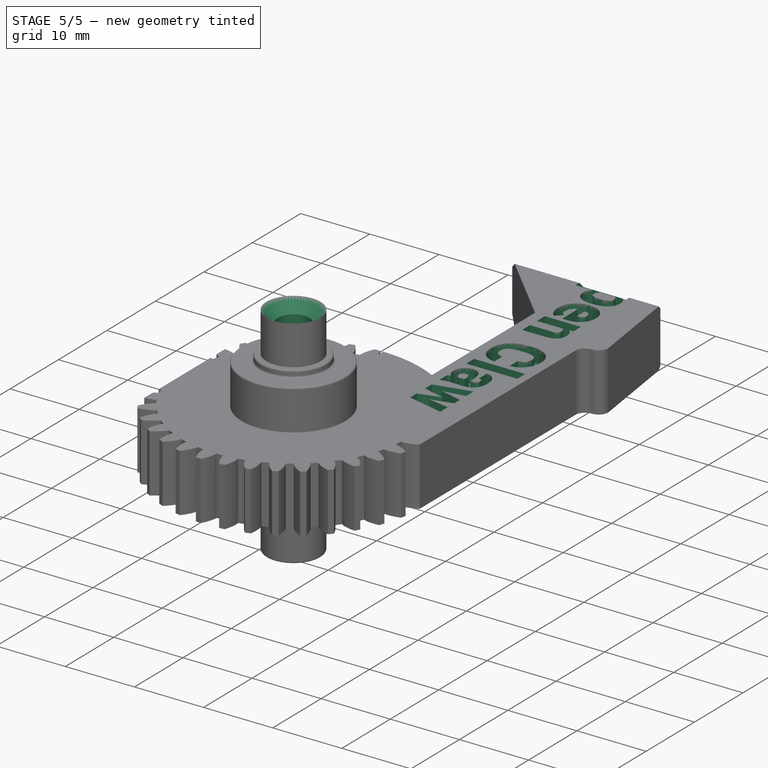
[diagram: stage 5 of 5 — iso view after this stage's code; geometry added in this stage tinted green]
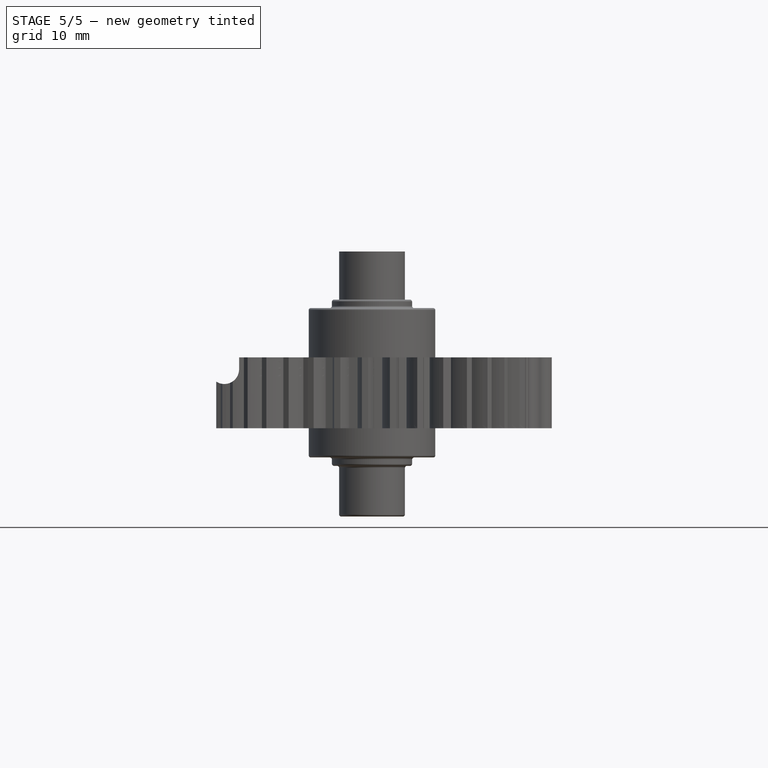
[diagram: stage 5 of 5 — front view after this stage's code; geometry added in this stage tinted green]
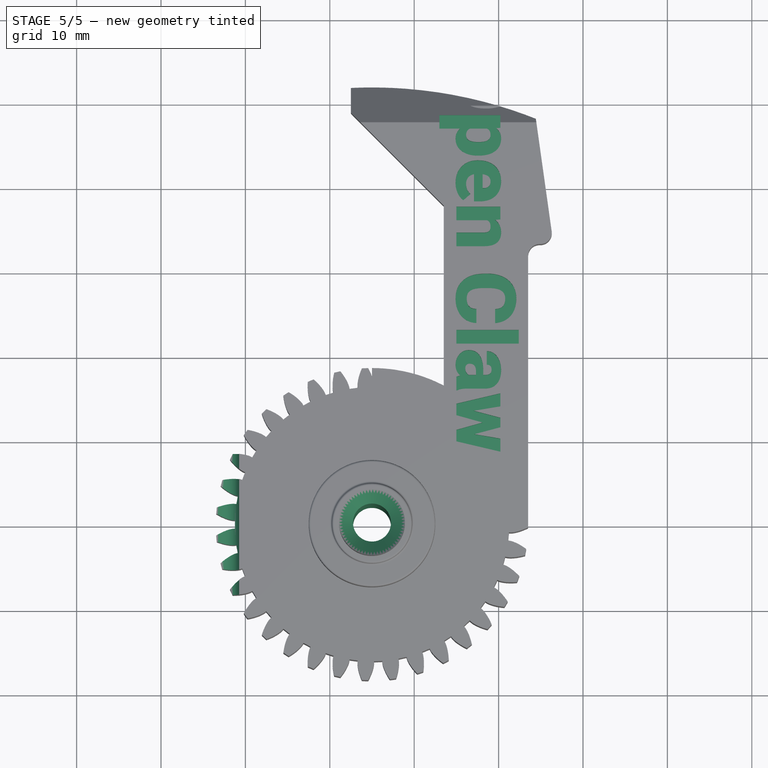
[diagram: stage 5 of 5 — top view after this stage's code; geometry added in this stage tinted green]
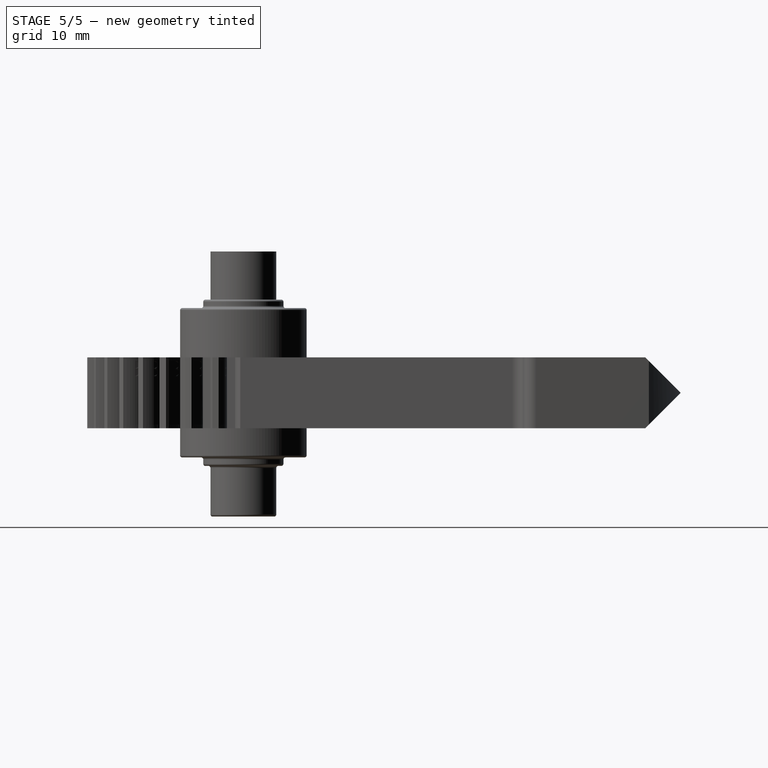
[diagram: stage 5 of 5 — right view after this stage's code; geometry added in this stage tinted green]
FEATURE [PartDesign::Fillet] Fillet003
  Base = -> Pad007 [Edge544,Edge547,Edge550,Edge554,Edge541]
  BaseFeature = -> Pad007
  Placement = pos=(35,0,0) rot=(0,0,1;0rad)
  Radius = 0.25
  Refine = true
  SupportTransform = false
  Suppressed = false
  UseAllEdges = false
FEATURE [Part::Part2DObjectPython] ShapeString001  # Draft 2D object (typed FeaturePython)
  AttachmentOffset = pos=(13.5,32,0) rot=(0,0,-1;1.5708rad)
  AttachmentSupport = -> [Fillet003]
  FontFile = <userpath>/Downloads/Roboto/Roboto-Black.ttf
  Fuse = false
  Justification = 4
  JustificationReference = 0
  KeepLeftMargin = false
  MakeFace = true
  MapMode = 5
  ObliqueAngle = 0
  Placement = pos=(48.5,32,8.4) rot=(0,0,-1;1.5708rad)
  ScaleToSize = true
  Size = 7
  String = Open Claw
  Tracking = 0
  expr: .AttachmentOffset.Base.x = -ShapeString.Placement.Base.x
  expr: .AttachmentOffset.Base.y = ShapeString.Placement.Base.y
  expr: Size = ShapeString.Size
FEATURE [PartDesign::Pocket] Pocket007
  BaseFeature = -> Fillet003
  Direction = (0,0,-1)
  Length = 2
  Length2 = 5
  Placement = pos=(35,0,0) rot=(0,0,1;0rad)
  Profile = -> ShapeString001
  ReferenceAxis = -> ShapeString001 [N_Axis]
  Refine = true
  Suppressed = false
  Type = 0
  expr: Length = Pocket006.Length
FEATURE [Sketcher::SketchObject] Sketch012
  ArcFitTolerance = 1e-06
  AttachmentSupport = -> [Pocket007]
  ExternalTypes = [0]
  FullyConstrained = true
  MakeInternals = false
  MapMode = 5
  Placement = pos=(35,0,21.25) rot=(0,0,1;0rad)
  sketch-geometry (1):
    g0: Circle CenterX=0 CenterY=0 CenterZ=0 NormalX=0 NormalY=0 NormalZ=1 AngleXU=0 Radius=2.25
  constraints (2):
    c: Diameter(g0) = 4.5
    c: Coincident(g0,g-1)
FEATURE [PartDesign::Pocket] Pocket008
  BaseFeature = -> Pocket007
  Direction = (0,0,-1)
  Length = 0
  Length2 = 5
  Placement = pos=(35,0,0) rot=(0,0,1;0rad)
  Profile = -> Sketch012
  ReferenceAxis = -> Sketch012 [N_Axis]
  Refine = true
  Suppressed = false
  Type = 3
  UpToFace = -> Pocket007 [Face324]
FEATURE [PartDesign::Hole] Hole
  BaseFeature = -> Pocket008
  CustomThreadClearance = 0
  Depth = 25
  DepthType = 0
  Diameter = 4.5
  DrillForDepth = false
  DrillPoint = 1
  DrillPointAngle = 118
  HoleCutCountersinkAngle = 90
  HoleCutCustomValues = false
  HoleCutDepth = 0
  HoleCutDiameter = 8.4
  HoleCutType = 2
  ModelThread = false
  Placement = pos=(35,0,0) rot=(0,0,1;0rad)
  Profile = -> Pocket008 [Edge932]
  Refine = true
  Suppressed = false
  Tapered = false
  TaperedAngle = 90
  ThreadClass = 0
  ThreadDepth = 25
  ThreadDepthType = 0
  ThreadDirection = 0
  ThreadFit = 0
  ThreadSize = 0
  ThreadType = 0
  Threaded = false
  UseCustomThreadClearance = false
FEATURE [PartDesign::Body] Body  label="Claw Pincher Powered"
  AllowCompound = false
  Group = -> [InvoluteGear,Sketch,Pad,Sketch001,Pocket,Sketch002,Pocket001,Sketch003,Pad001,Fillet,Sketch004,Pad002,Sketch005,Pocket002,ShapeString,Pocket006,Sketch013,Hole001,Sketch014,Pocket009]
  Origin = -> Origin
  Tip = -> Pocket009
FEATURE [Sketcher::SketchObject] Sketch015
  ArcFitTolerance = 1e-06
  AttachmentSupport = -> [XZ_Plane001]
  ExternalGeometry = -> [Hole]
  ExternalTypes = [0]
  FullyConstrained = true
  MakeInternals = false
  MapMode = 5
  Placement = pos=(0,0,0) rot=(1,0,0;1.5708rad)
  expr: Constraints[0] = Sketch014.Constraints.screwdriver_hole_x
  expr: Constraints[1] = Sketch014.Constraints.screwdriver_hole_y
  expr: Constraints[2] = Sketch014.Constraints.screwdriver_hole_diam
  sketch-geometry (5):
    g0: ArcOfCircle CenterX=17.5 CenterY=7 CenterZ=0 NormalX=0 NormalY=0 NormalZ=1 AngleXU=0 Radius=1.75 StartAngle=3.14159 EndAngle=6.28319
    g1: LineSegment [constr] StartX=27.5 StartY=8.4 StartZ=0 EndX=7.5 EndY=8.4 EndZ=0
    g2: LineSegment StartX=19.25 StartY=7 StartZ=0 EndX=19.25 EndY=8.4 EndZ=0
    g3: LineSegment StartX=15.75 StartY=7 StartZ=0 EndX=15.75 EndY=8.4 EndZ=0
    g4: LineSegment StartX=15.75 StartY=8.4 StartZ=0 EndX=19.25 EndY=8.4 EndZ=0
  constraints (14):
    c: DistanceX(g-1,g0) = 17.5
    c: DistanceY(g-1,g0) = 7
    c: Diameter(g0) = 3.5
    c: Coincident(g1,g-3)
    c: Horizontal(g1)
    c: DistanceX(g1,g1) = 20
    c: PointOnObject(g2,g1)
    c: Vertical(g2)
    c: PointOnObject(g3,g1)
    c: Vertical(g3)
    c: Coincident(g4,g3)
    c: Coincident(g4,g2)
    c: Tangent(g0,g2) = -1.5708
    c: Tangent(g0,g3) = 1.5708
FEATURE [PartDesign::Pocket] Pocket010
  BaseFeature = -> Hole
  Direction = (0,1,-2e-16)
  Length = 25
  Length2 = 5
  Midplane = true
  Placement = pos=(35,0,0) rot=(0,0,1;0rad)
  Profile = -> Sketch015
  ReferenceAxis = -> Sketch015 [N_Axis]
  Refine = true
  Suppressed = false
  Type = 0
  expr: Length = Pocket009.Length
FEATURE [PartDesign::Body] Body001  label="Claw Pincher Passive"
  AllowCompound = false
  Group = -> [InvoluteGear001,Sketch006,Binder,Pad003,Sketch007,Pocket003,Sketch008,Pad004,Sketch009,Pocket004,Pad005,Fillet001,Fillet002,Sketch010,Pad006,Sketch011,Pocket005,Pad007,Fillet003,ShapeString001,Pocket007,Sketch012,Pocket008,Hole,Sketch015,Pocket010]
  Origin = -> Origin001
  Tip = -> Pocket010
FEATURE [App::Point] Origin002  label="Origin"
  Role = Origin
FEATURE [App::Point] Origin003  label="Origin"
  Role = Origin
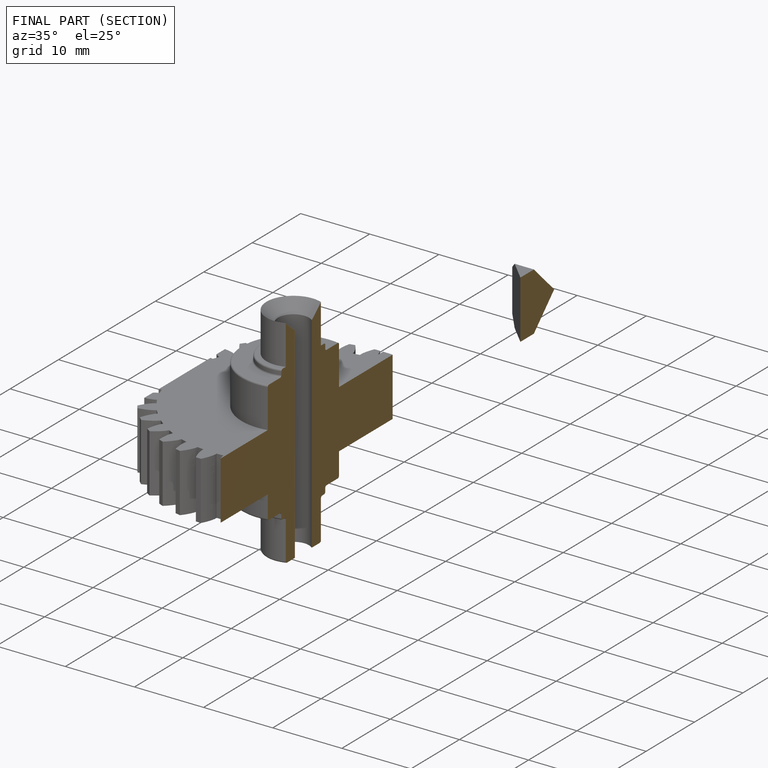
[diagram: finished part — half-section view (interior)]
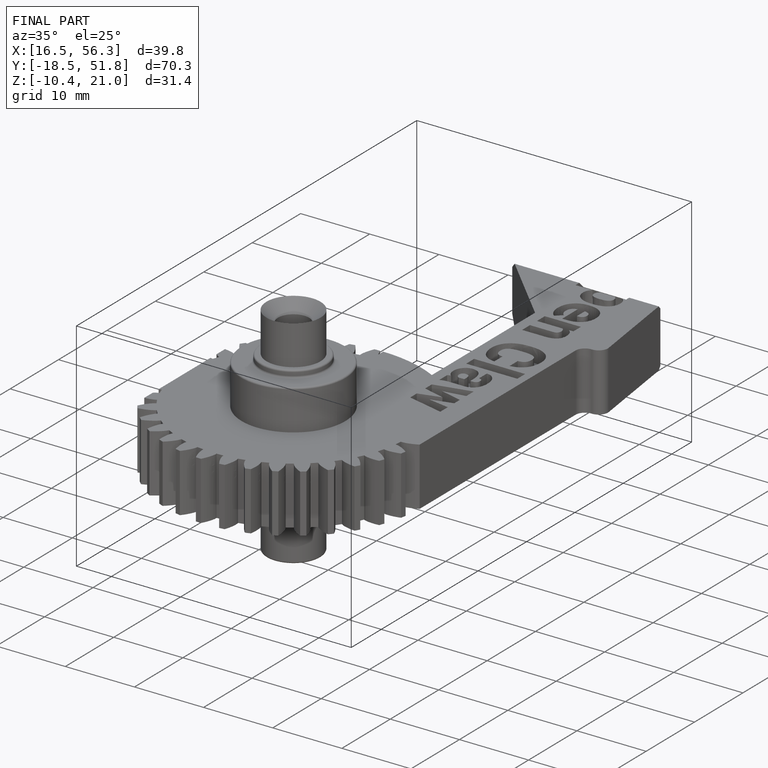
[diagram: finished part — iso view with bounding-box wireframe]
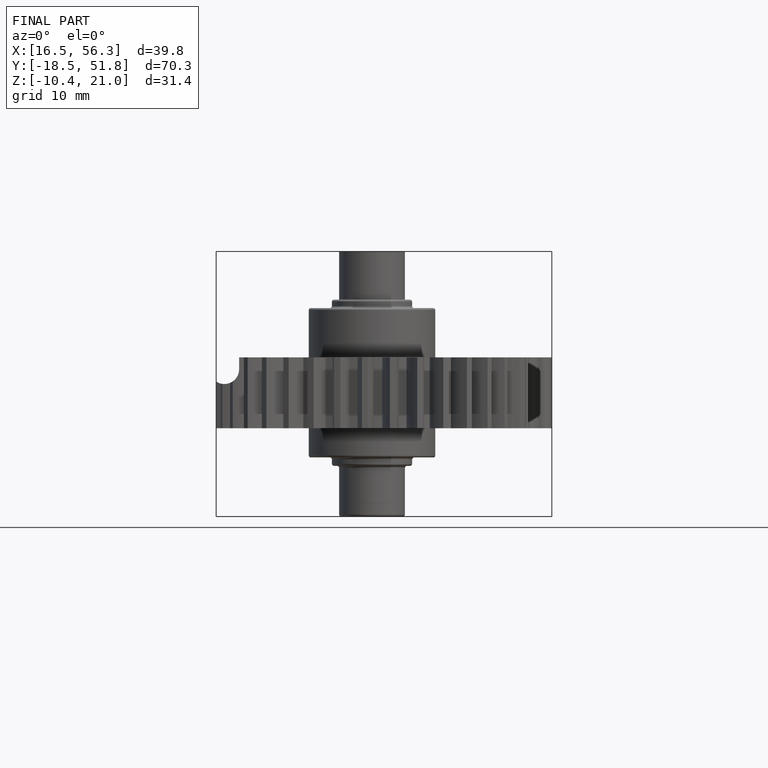
[diagram: finished part — front view with bounding-box wireframe]
